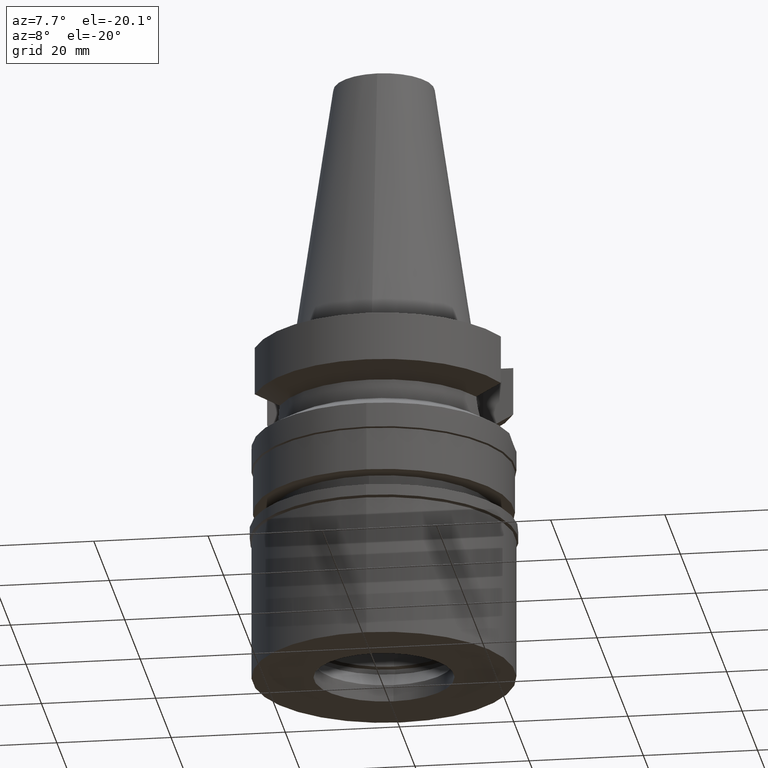
[diagram: clean part render]
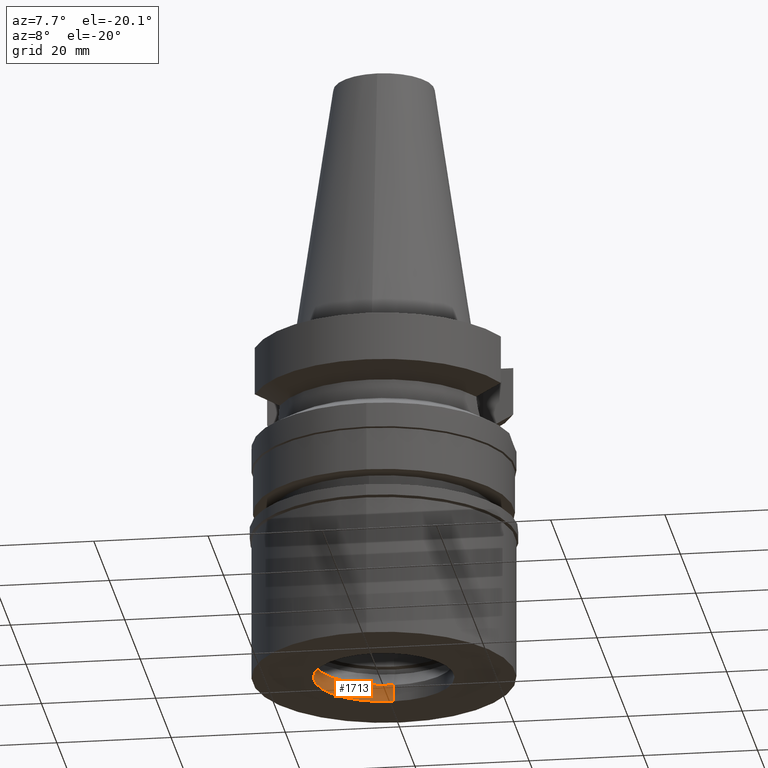
[diagram: same view with one face highlighted and labeled with its STEP entity id]
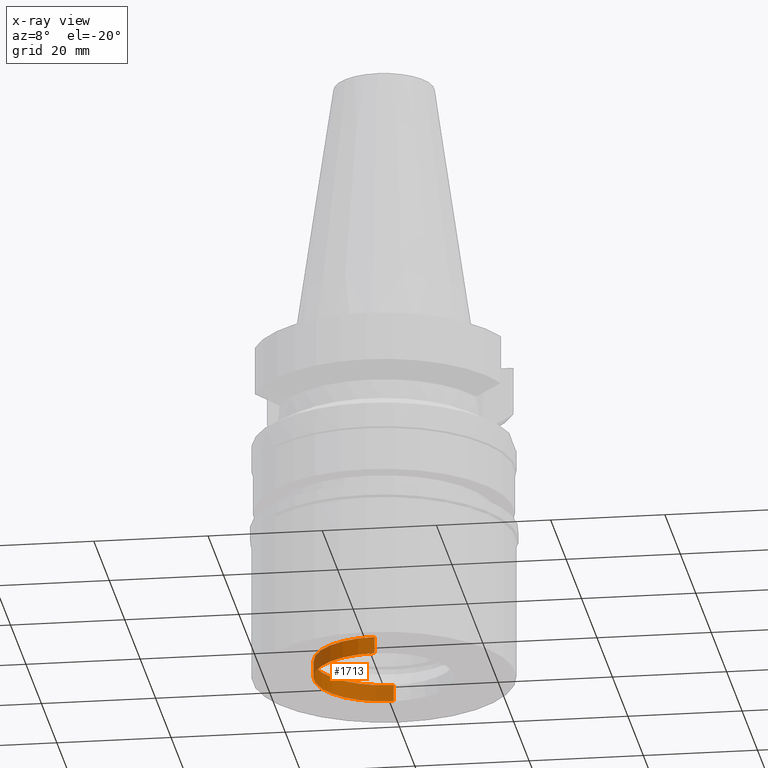
[diagram: x-ray of the same camera — body ghosted, the highlighted face saturated]
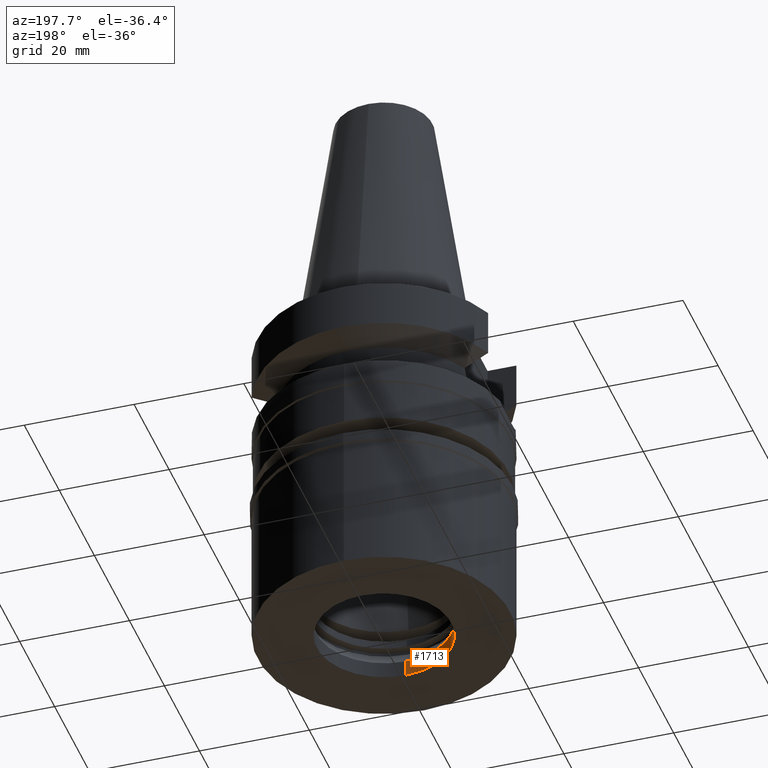
[diagram: same view with one face highlighted and labeled with its STEP entity id]
A machine part, auxiliary view. The second image highlights one B-rep face of the part: STEP entity #1713.
The next image is the same camera in x-ray: the body ghosted, the highlighted face saturated — about 0% of this face is hidden behind the body in this view.
A second angle (auxiliary view) of the same face is appended — the face is thin or edge-on in the first view.
In plain terms, the highlighted cylindrical surface (partial cylindrical patch) has radius 12.25 mm, axis along (0, 0, -1).
Its self-contained STEP definition (entity closure, byte-faithful):
#130 = CARTESIAN_POINT ( 'NONE',  ( 0.0000000000000000000, 0.0000000000000000000, 0.0000000000000000000 ) ) ;
#134 = DIRECTION ( 'NONE',  ( 0.0000000000000000000, -1.000000000000000000, 0.0000000000000000000 ) ) ;
#242 = DIRECTION ( 'NONE',  ( 0.0000000000000000000, 3.730349362741000050E-13, 1.000000000000000000 ) ) ;
#375 = DIRECTION ( 'NONE',  ( 0.0000000000000000000, 0.0000000000000000000, -1.000000000000000000 ) ) ;
#548 = EDGE_CURVE ( 'NONE', #1064, #2950, #2793, .T. ) ;
#562 = FACE_OUTER_BOUND ( 'NONE', #2133, .T. ) ;
#565 = CARTESIAN_POINT ( 'NONE',  ( 0.0000000000000000000, -12.25000000000000000, -27.19999999999999929 ) ) ;
#795 = EDGE_CURVE ( 'NONE', #2950, #3003, #1471, .T. ) ;
#869 = VECTOR ( 'NONE', #2909, 1000.000000000000000 ) ;
#870 = CARTESIAN_POINT ( 'NONE',  ( 0.0000000000000000000, 12.25000000000000000, -24.19999999999999929 ) ) ;
#877 = EDGE_CURVE ( 'NONE', #3003, #1770, #2312, .T. ) ;
#883 = VECTOR ( 'NONE', #242, 1000.000000000000000 ) ;
#1064 = VERTEX_POINT ( 'NONE', #1182 ) ;
#1109 = ORIENTED_EDGE ( 'NONE', *, *, #548, .T. ) ;
#1182 = CARTESIAN_POINT ( 'NONE',  ( 0.0000000000000000000, -12.25000000000000000, -27.19999999999999929 ) ) ;
#1263 = DIRECTION ( 'NONE',  ( 0.0000000000000000000, -1.000000000000000000, 0.0000000000000000000 ) ) ;
#1302 = CARTESIAN_POINT ( 'NONE',  ( 0.0000000000000000000, -12.25000000000000000, -24.19999999999999929 ) ) ;
#1471 = LINE ( 'NONE', #2190, #883 ) ;
#1478 = AXIS2_PLACEMENT_3D ( 'NONE', #130, #2024, #1263 ) ;
#1713 = ADVANCED_FACE ( 'NONE', ( #562 ), #1764, .F. ) ;
#1764 = CYLINDRICAL_SURFACE ( 'NONE', #1478, 12.25000000000000000 ) ;
#1770 = VERTEX_POINT ( 'NONE', #1302 ) ;
#1793 = CARTESIAN_POINT ( 'NONE',  ( 0.0000000000000000000, 0.0000000000000000000, -27.19999999999999929 ) ) ;
#2024 = DIRECTION ( 'NONE',  ( 0.0000000000000000000, 0.0000000000000000000, -1.000000000000000000 ) ) ;
#2036 = CARTESIAN_POINT ( 'NONE',  ( 0.0000000000000000000, 0.0000000000000000000, -24.19999999999999929 ) ) ;
#2098 = ORIENTED_EDGE ( 'NONE', *, *, #877, .T. ) ;
#2133 = EDGE_LOOP ( 'NONE', ( #2098, #2136, #1109, #2235 ) ) ;
#2136 = ORIENTED_EDGE ( 'NONE', *, *, #2932, .F. ) ;
#2190 = CARTESIAN_POINT ( 'NONE',  ( 0.0000000000000000000, 12.25000000000000000, -27.19999999999999929 ) ) ;
#2235 = ORIENTED_EDGE ( 'NONE', *, *, #795, .T. ) ;
#2312 = CIRCLE ( 'NONE', #2894, 12.25000000000000000 ) ;
#2475 = CARTESIAN_POINT ( 'NONE',  ( 0.0000000000000000000, 12.25000000000000000, -27.19999999999999929 ) ) ;
#2707 = LINE ( 'NONE', #565, #869 ) ;
#2723 = DIRECTION ( 'NONE',  ( 0.0000000000000000000, 0.0000000000000000000, 1.000000000000000000 ) ) ;
#2793 = CIRCLE ( 'NONE', #3028, 12.25000000000000000 ) ;
#2894 = AXIS2_PLACEMENT_3D ( 'NONE', #2036, #2723, #2968 ) ;
#2909 = DIRECTION ( 'NONE',  ( 0.0000000000000000000, -3.730349362741000050E-13, 1.000000000000000000 ) ) ;
#2932 = EDGE_CURVE ( 'NONE', #1064, #1770, #2707, .T. ) ;
#2950 = VERTEX_POINT ( 'NONE', #2475 ) ;
#2968 = DIRECTION ( 'NONE',  ( 0.0000000000000000000, 1.000000000000000000, 0.0000000000000000000 ) ) ;
#3003 = VERTEX_POINT ( 'NONE', #870 ) ;
#3028 = AXIS2_PLACEMENT_3D ( 'NONE', #1793, #375, #134 ) ;